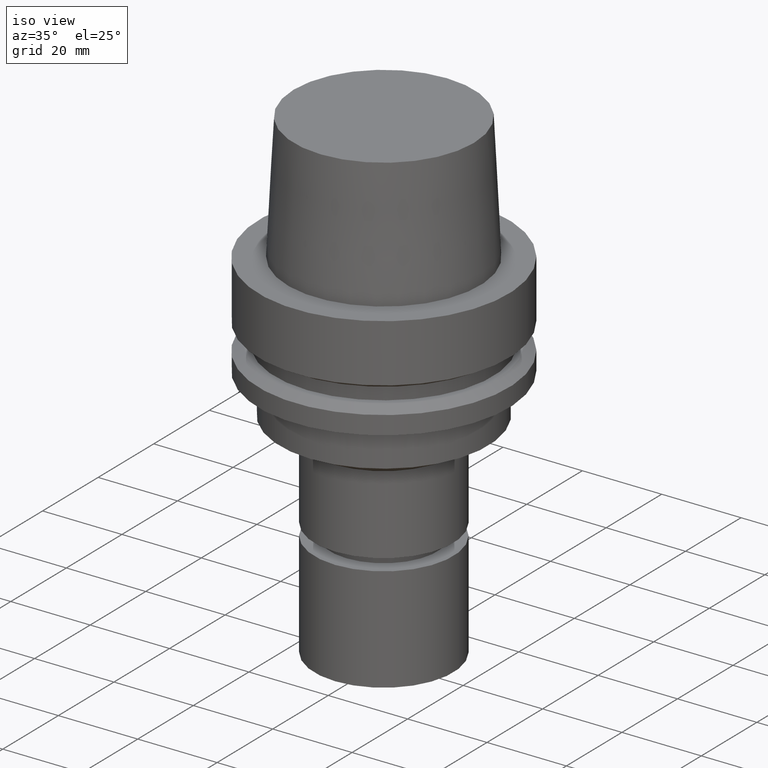
[diagram: clean part render]
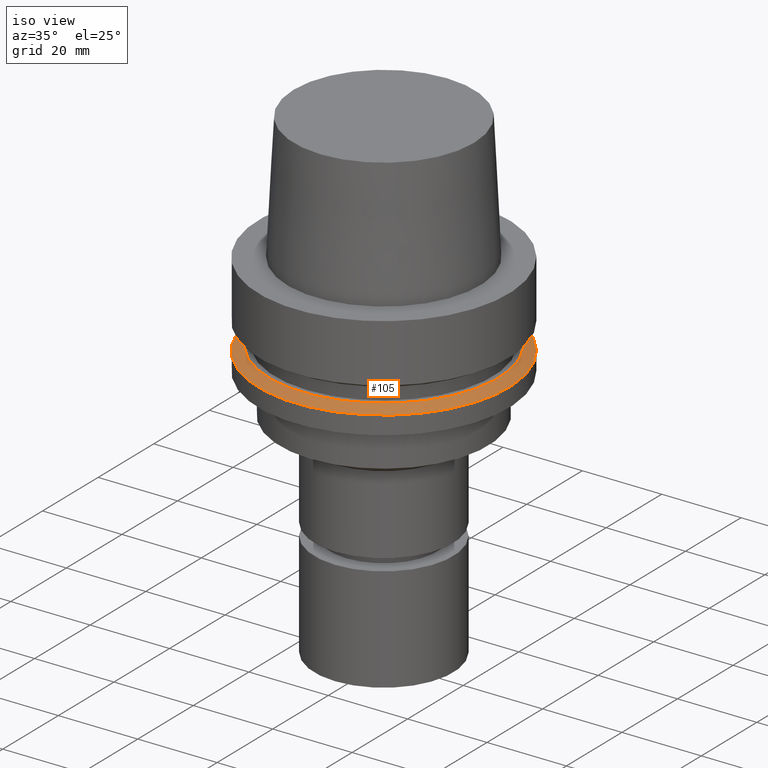
[diagram: same view with one face highlighted and labeled with its STEP entity id]
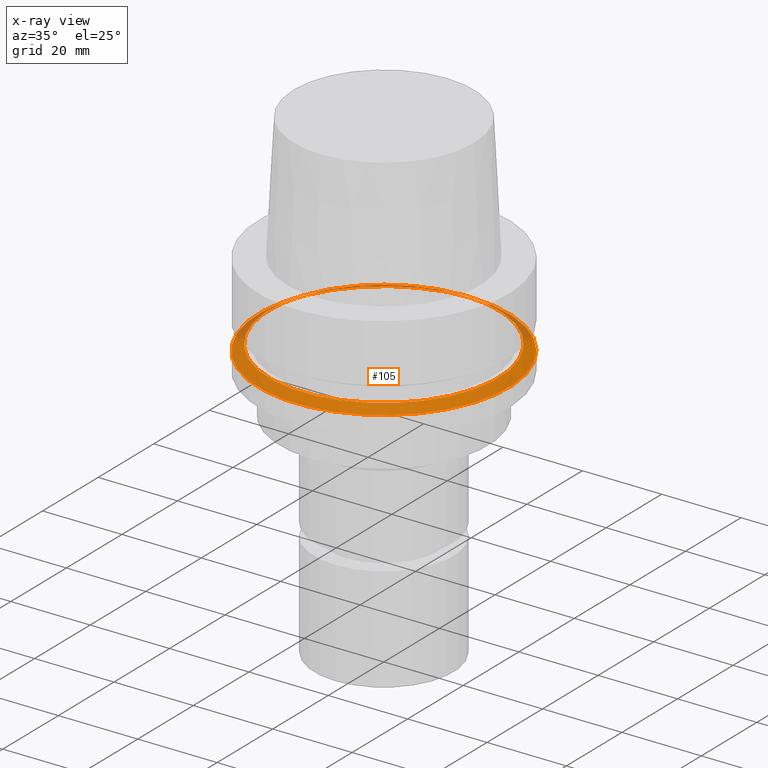
[diagram: x-ray of the same camera — body ghosted, the highlighted face saturated]
A machine part, iso view. The second image highlights one B-rep face of the part: STEP entity #105.
The next image is the same camera in x-ray: the body ghosted, the highlighted face saturated — about 12% of this face is hidden behind the body in this view.
In plain terms, the highlighted conical surface has half-angle 60 deg.
Its self-contained STEP definition (entity closure, byte-faithful):
#105=ADVANCED_FACE('Unnamed[1]',(#256,#257),#258,.T.);
#112=EDGE_CURVE('Unnamed[1]',#266,#266,#267,.T.);
#140=EDGE_CURVE('Unnamed[1]',#309,#309,#310,.T.);
#256=FACE_BOUND('',#457,.T.);
#257=FACE_BOUND('',#458,.T.);
#258=CONICAL_SURFACE('',#459,30.1987976320959,1.04719755119657);
#266=VERTEX_POINT('',#469);
#267=CIRCLE('',#470,28.8975952641919);
#309=VERTEX_POINT('',#523);
#310=CIRCLE('',#524,31.5);
#457=EDGE_LOOP('',(#678));
#458=EDGE_LOOP('',(#679));
#459=AXIS2_PLACEMENT_3D('',#680,#681,#682);
#469=CARTESIAN_POINT('',(1.21699275665268E-015,28.8975952641919,-19.875));
#470=AXIS2_PLACEMENT_3D('',#687,#688,#689);
#523=CARTESIAN_POINT('',(1.30899429078397E-015,31.5,-21.3774990747592));
#524=AXIS2_PLACEMENT_3D('',#736,#737,#738);
#678=ORIENTED_EDGE('',*,*,#112,.F.);
#679=ORIENTED_EDGE('',*,*,#140,.T.);
#680=CARTESIAN_POINT('',(1.26299352371833E-015,2.52598704743665E-015,-20.6262495373796));
#681=DIRECTION('',(6.12323399573677E-017,1.22464679914735E-016,-1.0));
#682=DIRECTION('',(-1.23259516440783E-032,1.0,1.22464679914735E-016));
#687=CARTESIAN_POINT('',(1.21699275665268E-015,2.43398551330536E-015,-19.875));
#688=DIRECTION('',(-6.12323399573677E-017,-1.22464679914735E-016,1.0));
#689=DIRECTION('',(-1.23259516440783E-032,1.0,1.22464679914735E-016));
#736=CARTESIAN_POINT('',(1.30899429078397E-015,2.61798858156794E-015,-21.3774990747592));
#737=DIRECTION('',(-6.12323399573677E-017,-1.22464679914735E-016,1.0));
#738=DIRECTION('',(-1.23259516440783E-032,1.0,1.22464679914735E-016));